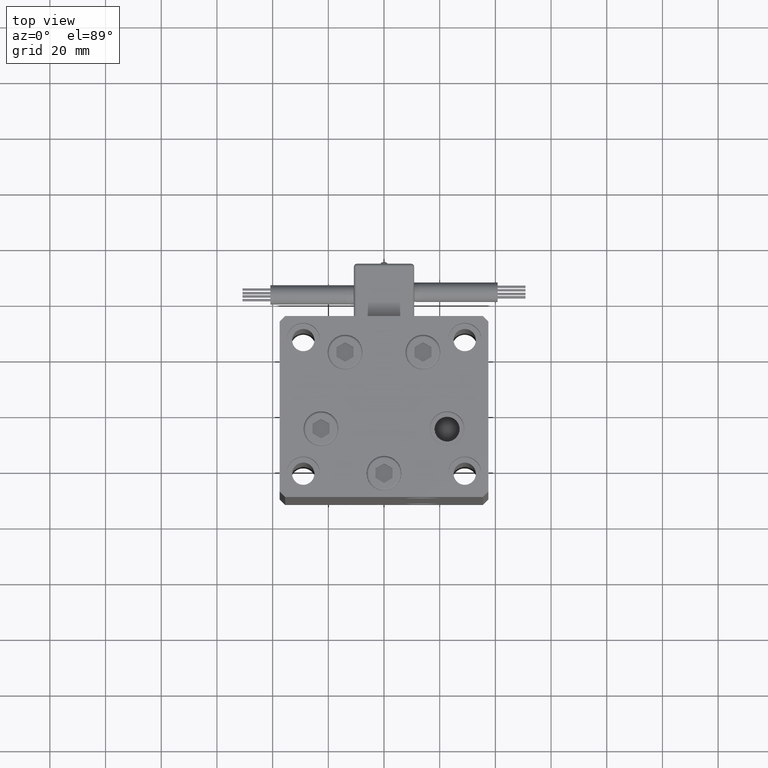
[diagram: clean part render]
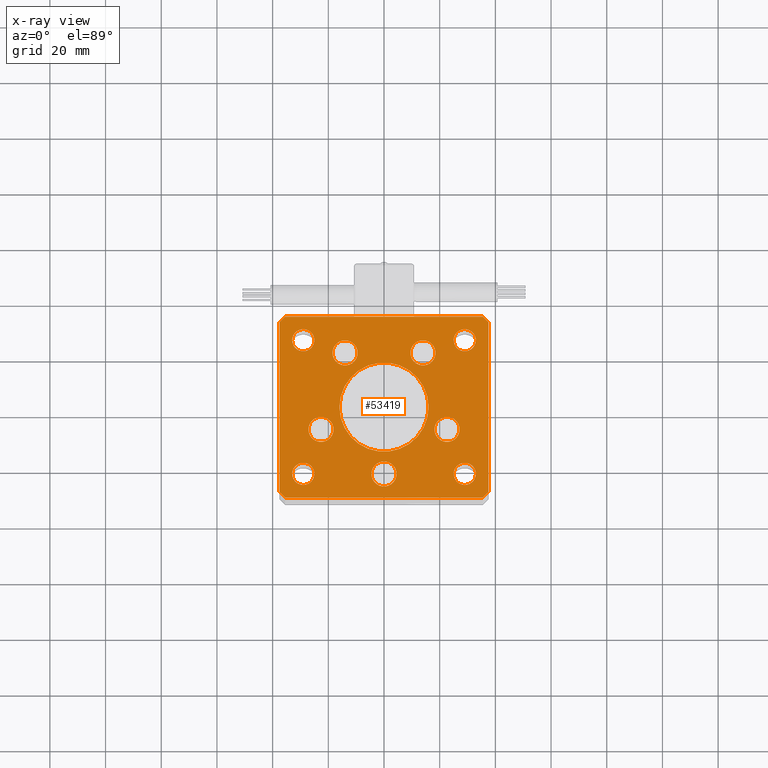
[diagram: x-ray — body ghosted, one internal face saturated and labeled with its STEP entity id]
A machine part, top view, then the same camera in x-ray: the body is ghosted and one INTERNAL B-rep face — a face not visible from any outside direction — is saturated and labeled: STEP entity #53419.
In plain terms, the highlighted planar face has unit normal (0, 0, 1).
Its self-contained STEP definition (entity closure, byte-faithful):
#75 = CARTESIAN_POINT ( 'NONE',  ( 13.99106857963322348, 19.50000000000000000, -15.00000000000000000 ) ) ;
#300 = CARTESIAN_POINT ( 'NONE',  ( -33.00000000000000711, 24.00000000000000711, -15.00000000000000000 ) ) ;
#375 = VERTEX_POINT ( 'NONE', #9102 ) ;
#376 = EDGE_LOOP ( 'NONE', ( #28536, #11638 ) ) ;
#503 = CARTESIAN_POINT ( 'NONE',  ( -4.499999999999999112, -24.00000000000000000, -15.00000000000000000 ) ) ;
#760 = DIRECTION ( 'NONE',  ( 1.000000000000000000, 0.000000000000000000, 0.000000000000000000 ) ) ;
#765 = ORIENTED_EDGE ( 'NONE', *, *, #16383, .F. ) ;
#1034 = EDGE_CURVE ( 'NONE', #19687, #28194, #25902, .T. ) ;
#1124 = ORIENTED_EDGE ( 'NONE', *, *, #20291, .F. ) ;
#1342 = CARTESIAN_POINT ( 'NONE',  ( 37.50000000000001421, -30.50000000000000711, -15.00000000000000000 ) ) ;
#1927 = CIRCLE ( 'NONE', #37577, 4.500000000000000888 ) ;
#2060 = DIRECTION ( 'NONE',  ( 1.000000000000000000, 0.000000000000000000, 0.000000000000000000 ) ) ;
#2107 = EDGE_CURVE ( 'NONE', #29996, #28820, #8516, .T. ) ;
#2145 = ORIENTED_EDGE ( 'NONE', *, *, #23995, .T. ) ;
#2460 = AXIS2_PLACEMENT_3D ( 'NONE', #21470, #42679, #760 ) ;
#2506 = DIRECTION ( 'NONE',  ( -0.7071067811865482389, 0.7071067811865469066, 0.000000000000000000 ) ) ;
#2545 = DIRECTION ( 'NONE',  ( 4.550094363217855288E-16, -1.000000000000000000, 0.000000000000000000 ) ) ;
#2684 = AXIS2_PLACEMENT_3D ( 'NONE', #40672, #3380, #15114 ) ;
#2729 = FACE_BOUND ( 'NONE', #51934, .T. ) ;
#2776 = LINE ( 'NONE', #47221, #33296 ) ;
#2948 = ORIENTED_EDGE ( 'NONE', *, *, #27107, .F. ) ;
#3380 = DIRECTION ( 'NONE',  ( 0.000000000000000000, -0.000000000000000000, -1.000000000000000000 ) ) ;
#3543 = VERTEX_POINT ( 'NONE', #5046 ) ;
#3970 = ORIENTED_EDGE ( 'NONE', *, *, #35708, .F. ) ;
#4070 = EDGE_LOOP ( 'NONE', ( #21224, #16861 ) ) ;
#4469 = AXIS2_PLACEMENT_3D ( 'NONE', #16233, #28760, #24673 ) ;
#4658 = CIRCLE ( 'NONE', #22035, 4.000000000000003553 ) ;
#4809 = VECTOR ( 'NONE', #21756, 1000.000000000000114 ) ;
#4810 = CIRCLE ( 'NONE', #27437, 4.500000000000005329 ) ;
#5001 = ORIENTED_EDGE ( 'NONE', *, *, #15268, .F. ) ;
#5046 = CARTESIAN_POINT ( 'NONE',  ( 37.50000000000001421, -30.50000000000000711, -15.00000000000000000 ) ) ;
#5122 = CARTESIAN_POINT ( 'NONE',  ( -35.49999999999998579, -32.50000000000001421, -15.00000000000000000 ) ) ;
#5373 = DIRECTION ( 'NONE',  ( 1.000000000000000000, 0.000000000000000000, 0.000000000000000000 ) ) ;
#5580 = AXIS2_PLACEMENT_3D ( 'NONE', #10704, #27322, #51547 ) ;
#5753 = CARTESIAN_POINT ( 'NONE',  ( 37.49999999999992184, 30.50000000000001066, -15.00000000000000000 ) ) ;
#5919 = VERTEX_POINT ( 'NONE', #9964 ) ;
#6263 = VERTEX_POINT ( 'NONE', #23725 ) ;
#6343 = CARTESIAN_POINT ( 'NONE',  ( -37.50000000000001421, 30.49999999999998579, -15.00000000000000000 ) ) ;
#6363 = CARTESIAN_POINT ( 'NONE',  ( 2.939152317953647500E-15, -24.00000000000000000, -15.00000000000000000 ) ) ;
#6401 = DIRECTION ( 'NONE',  ( 1.000000000000000000, 0.000000000000000000, 0.000000000000000000 ) ) ;
#6554 = VERTEX_POINT ( 'NONE', #12209 ) ;
#6609 = ORIENTED_EDGE ( 'NONE', *, *, #2107, .T. ) ;
#6672 = DIRECTION ( 'NONE',  ( 0.000000000000000000, -0.000000000000000000, -1.000000000000000000 ) ) ;
#6735 = CARTESIAN_POINT ( 'NONE',  ( -16.00000000000000000, 1.959434878635764737E-15, -15.00000000000000000 ) ) ;
#6871 = EDGE_CURVE ( 'NONE', #28194, #19687, #22629, .T. ) ;
#7072 = CARTESIAN_POINT ( 'NONE',  ( 0.000000000000000000, 0.000000000000000000, -15.00000000000000000 ) ) ;
#7743 = CIRCLE ( 'NONE', #46033, 4.500000000000001776 ) ;
#8018 = VERTEX_POINT ( 'NONE', #18647 ) ;
#8145 = EDGE_CURVE ( 'NONE', #8018, #43575, #37475, .T. ) ;
#8248 = EDGE_CURVE ( 'NONE', #52831, #5919, #20971, .T. ) ;
#8405 = CIRCLE ( 'NONE', #13638, 4.000000000000003553 ) ;
#8516 = CIRCLE ( 'NONE', #2460, 4.000000000000000000 ) ;
#8719 = EDGE_CURVE ( 'NONE', #43697, #37021, #19262, .T. ) ;
#9102 = CARTESIAN_POINT ( 'NONE',  ( 25.00000000000000711, -23.99999999999999289, -15.00000000000000000 ) ) ;
#9519 = CARTESIAN_POINT ( 'NONE',  ( 35.49999999999992184, 32.50000000000000711, -15.00000000000000000 ) ) ;
#9859 = CARTESIAN_POINT ( 'NONE',  ( 37.49999999999992184, 30.50000000000001066, -15.00000000000000000 ) ) ;
#9964 = CARTESIAN_POINT ( 'NONE',  ( 27.12741699796952233, -8.000000000000000000, -15.00000000000000000 ) ) ;
#10182 = CARTESIAN_POINT ( 'NONE',  ( -29.00000000000001066, 24.00000000000000711, -15.00000000000000000 ) ) ;
#10646 = CARTESIAN_POINT ( 'NONE',  ( -33.00000000000000711, -23.99999999999999289, -15.00000000000000000 ) ) ;
#10691 = VERTEX_POINT ( 'NONE', #34171 ) ;
#10704 = CARTESIAN_POINT ( 'NONE',  ( 13.99106857963322348, 19.50000000000000000, -15.00000000000000000 ) ) ;
#10895 = FACE_BOUND ( 'NONE', #13182, .T. ) ;
#11026 = EDGE_CURVE ( 'NONE', #5919, #52831, #1927, .T. ) ;
#11068 = CIRCLE ( 'NONE', #18018, 4.000000000000000000 ) ;
#11470 = DIRECTION ( 'NONE',  ( -1.000000000000000000, 0.000000000000000000, 0.000000000000000000 ) ) ;
#11499 = CARTESIAN_POINT ( 'NONE',  ( 4.500000000000003553, -24.00000000000000000, -15.00000000000000000 ) ) ;
#11635 = DIRECTION ( 'NONE',  ( 0.000000000000000000, -0.000000000000000000, -1.000000000000000000 ) ) ;
#11638 = ORIENTED_EDGE ( 'NONE', *, *, #50146, .F. ) ;
#11751 = DIRECTION ( 'NONE',  ( -1.000000000000000000, 0.000000000000000000, 0.000000000000000000 ) ) ;
#12209 = CARTESIAN_POINT ( 'NONE',  ( 9.491068579633218150, 19.50000000000000000, -15.00000000000000000 ) ) ;
#12391 = VERTEX_POINT ( 'NONE', #45597 ) ;
#12687 = DIRECTION ( 'NONE',  ( -1.000000000000000000, 0.000000000000000000, 0.000000000000000000 ) ) ;
#12771 = CARTESIAN_POINT ( 'NONE',  ( 29.00000000000001066, -23.99999999999999289, -15.00000000000000000 ) ) ;
#12852 = VECTOR ( 'NONE', #34554, 1000.000000000000000 ) ;
#12890 = DIRECTION ( 'NONE',  ( 0.000000000000000000, -0.000000000000000000, -1.000000000000000000 ) ) ;
#13182 = EDGE_LOOP ( 'NONE', ( #37884, #765 ) ) ;
#13347 = CARTESIAN_POINT ( 'NONE',  ( -29.00000000000001066, -23.99999999999999289, -15.00000000000000000 ) ) ;
#13638 = AXIS2_PLACEMENT_3D ( 'NONE', #31736, #22769, #2060 ) ;
#13708 = VERTEX_POINT ( 'NONE', #23538 ) ;
#13785 = AXIS2_PLACEMENT_3D ( 'NONE', #15140, #6672, #6401 ) ;
#14038 = EDGE_CURVE ( 'NONE', #375, #39705, #4658, .T. ) ;
#14175 = FACE_BOUND ( 'NONE', #32340, .T. ) ;
#14516 = AXIS2_PLACEMENT_3D ( 'NONE', #31270, #47880, #24475 ) ;
#14752 = VECTOR ( 'NONE', #26142, 1000.000000000000000 ) ;
#14992 = FACE_BOUND ( 'NONE', #23381, .T. ) ;
#15114 = DIRECTION ( 'NONE',  ( 1.000000000000000000, 0.000000000000000000, 0.000000000000000000 ) ) ;
#15140 = CARTESIAN_POINT ( 'NONE',  ( -13.99106857963322703, 19.49999999999999645, -15.00000000000000000 ) ) ;
#15222 = DIRECTION ( 'NONE',  ( 0.000000000000000000, -0.000000000000000000, -1.000000000000000000 ) ) ;
#15268 = EDGE_CURVE ( 'NONE', #51465, #6263, #40030, .T. ) ;
#15466 = AXIS2_PLACEMENT_3D ( 'NONE', #13347, #26136, #42731 ) ;
#15582 = CARTESIAN_POINT ( 'NONE',  ( -35.50000000000002842, 32.49999999999999289, -15.00000000000000000 ) ) ;
#15803 = EDGE_CURVE ( 'NONE', #6263, #44574, #36287, .T. ) ;
#16233 = CARTESIAN_POINT ( 'NONE',  ( 29.00000000000001066, 24.00000000000000711, -15.00000000000000000 ) ) ;
#16383 = EDGE_CURVE ( 'NONE', #20432, #19707, #36950, .T. ) ;
#16720 = CARTESIAN_POINT ( 'NONE',  ( -25.00000000000001066, 24.00000000000000711, -15.00000000000000000 ) ) ;
#16861 = ORIENTED_EDGE ( 'NONE', *, *, #37058, .F. ) ;
#17237 = ORIENTED_EDGE ( 'NONE', *, *, #31962, .F. ) ;
#17448 = VECTOR ( 'NONE', #2506, 999.9999999999998863 ) ;
#17673 = ORIENTED_EDGE ( 'NONE', *, *, #29159, .F. ) ;
#18018 = AXIS2_PLACEMENT_3D ( 'NONE', #10182, #26807, #47749 ) ;
#18191 = EDGE_CURVE ( 'NONE', #13708, #6554, #30798, .T. ) ;
#18537 = FACE_OUTER_BOUND ( 'NONE', #18785, .T. ) ;
#18647 = CARTESIAN_POINT ( 'NONE',  ( -18.12741699796952233, -8.000000000000005329, -15.00000000000000000 ) ) ;
#18785 = EDGE_LOOP ( 'NONE', ( #1124, #48960, #5001, #31785, #33938, #31579, #3970, #17237 ) ) ;
#18805 = FACE_BOUND ( 'NONE', #43494, .T. ) ;
#19094 = DIRECTION ( 'NONE',  ( -0.7071067811865426878, -0.7071067811865524577, 0.000000000000000000 ) ) ;
#19262 = CIRCLE ( 'NONE', #4469, 4.000000000000003553 ) ;
#19347 = FACE_BOUND ( 'NONE', #28871, .T. ) ;
#19400 = DIRECTION ( 'NONE',  ( 1.000000000000000000, 9.773090005503140331E-17, 0.000000000000000000 ) ) ;
#19650 = CARTESIAN_POINT ( 'NONE',  ( 29.00000000000001066, -23.99999999999999289, -15.00000000000000000 ) ) ;
#19687 = VERTEX_POINT ( 'NONE', #10646 ) ;
#19707 = VERTEX_POINT ( 'NONE', #49281 ) ;
#19937 = CIRCLE ( 'NONE', #32083, 4.000000000000003553 ) ;
#20006 = DIRECTION ( 'NONE',  ( 0.000000000000000000, -0.000000000000000000, -1.000000000000000000 ) ) ;
#20291 = EDGE_CURVE ( 'NONE', #44574, #47645, #34519, .T. ) ;
#20432 = VERTEX_POINT ( 'NONE', #6735 ) ;
#20592 = DIRECTION ( 'NONE',  ( -0.000000000000000000, -0.000000000000000000, -1.000000000000000000 ) ) ;
#20654 = CARTESIAN_POINT ( 'NONE',  ( 25.00000000000000711, 24.00000000000000711, -15.00000000000000000 ) ) ;
#20971 = CIRCLE ( 'NONE', #27921, 4.500000000000000888 ) ;
#21224 = ORIENTED_EDGE ( 'NONE', *, *, #18191, .F. ) ;
#21467 = DIRECTION ( 'NONE',  ( 0.000000000000000000, -0.000000000000000000, -1.000000000000000000 ) ) ;
#21470 = CARTESIAN_POINT ( 'NONE',  ( -29.00000000000001066, 24.00000000000000711, -15.00000000000000000 ) ) ;
#21720 = AXIS2_PLACEMENT_3D ( 'NONE', #42677, #21467, #5373 ) ;
#21756 = DIRECTION ( 'NONE',  ( 0.7071067811865474617, -0.7071067811865474617, 0.000000000000000000 ) ) ;
#22035 = AXIS2_PLACEMENT_3D ( 'NONE', #19650, #36235, #11470 ) ;
#22629 = CIRCLE ( 'NONE', #53065, 3.999999999999996447 ) ;
#22769 = DIRECTION ( 'NONE',  ( 0.000000000000000000, 0.000000000000000000, 1.000000000000000000 ) ) ;
#23363 = CIRCLE ( 'NONE', #13785, 4.499999999999999112 ) ;
#23367 = CARTESIAN_POINT ( 'NONE',  ( 35.49999999999992184, 32.50000000000000711, -15.00000000000000000 ) ) ;
#23381 = EDGE_LOOP ( 'NONE', ( #2145, #45048 ) ) ;
#23538 = CARTESIAN_POINT ( 'NONE',  ( 18.49106857963322881, 19.50000000000000000, -15.00000000000000000 ) ) ;
#23725 = CARTESIAN_POINT ( 'NONE',  ( -37.50000000000001421, 30.49999999999998579, -15.00000000000000000 ) ) ;
#23995 = EDGE_CURVE ( 'NONE', #37021, #43697, #8405, .T. ) ;
#24098 = CARTESIAN_POINT ( 'NONE',  ( 22.62741699796951877, -8.000000000000000000, -15.00000000000000000 ) ) ;
#24172 = DIRECTION ( 'NONE',  ( 1.000000000000000000, 0.000000000000000000, 0.000000000000000000 ) ) ;
#24343 = CARTESIAN_POINT ( 'NONE',  ( 33.00000000000001421, 24.00000000000000711, -15.00000000000000000 ) ) ;
#24359 = DIRECTION ( 'NONE',  ( 0.000000000000000000, -0.000000000000000000, -1.000000000000000000 ) ) ;
#24475 = DIRECTION ( 'NONE',  ( 1.000000000000000000, 0.000000000000000000, 0.000000000000000000 ) ) ;
#24673 = DIRECTION ( 'NONE',  ( 1.000000000000000000, 0.000000000000000000, 0.000000000000000000 ) ) ;
#25521 = ORIENTED_EDGE ( 'NONE', *, *, #6871, .F. ) ;
#25902 = CIRCLE ( 'NONE', #15466, 3.999999999999996447 ) ;
#26136 = DIRECTION ( 'NONE',  ( -0.000000000000000000, -0.000000000000000000, -1.000000000000000000 ) ) ;
#26142 = DIRECTION ( 'NONE',  ( -1.000000000000000000, -1.954618001100629052E-16, 0.000000000000000000 ) ) ;
#26364 = CARTESIAN_POINT ( 'NONE',  ( 18.12741699796951877, -8.000000000000000000, -15.00000000000000000 ) ) ;
#26807 = DIRECTION ( 'NONE',  ( 0.000000000000000000, 0.000000000000000000, 1.000000000000000000 ) ) ;
#26976 = DIRECTION ( 'NONE',  ( -0.000000000000000000, 0.000000000000000000, 1.000000000000000000 ) ) ;
#27107 = EDGE_CURVE ( 'NONE', #51338, #10691, #23363, .T. ) ;
#27241 = FACE_BOUND ( 'NONE', #376, .T. ) ;
#27322 = DIRECTION ( 'NONE',  ( 0.000000000000000000, -0.000000000000000000, -1.000000000000000000 ) ) ;
#27437 = AXIS2_PLACEMENT_3D ( 'NONE', #75, #53720, #28150 ) ;
#27816 = CIRCLE ( 'NONE', #21720, 4.500000000000001776 ) ;
#27921 = AXIS2_PLACEMENT_3D ( 'NONE', #42011, #53736, #49906 ) ;
#28150 = DIRECTION ( 'NONE',  ( 1.000000000000000000, 0.000000000000000000, 0.000000000000000000 ) ) ;
#28194 = VERTEX_POINT ( 'NONE', #31467 ) ;
#28536 = ORIENTED_EDGE ( 'NONE', *, *, #49501, .F. ) ;
#28697 = DIRECTION ( 'NONE',  ( 1.000000000000000000, 0.000000000000000000, 0.000000000000000000 ) ) ;
#28760 = DIRECTION ( 'NONE',  ( 0.000000000000000000, 0.000000000000000000, 1.000000000000000000 ) ) ;
#28763 = CARTESIAN_POINT ( 'NONE',  ( -29.00000000000001066, -23.99999999999999289, -15.00000000000000000 ) ) ;
#28820 = VERTEX_POINT ( 'NONE', #16720 ) ;
#28871 = EDGE_LOOP ( 'NONE', ( #25521, #49730 ) ) ;
#28923 = EDGE_LOOP ( 'NONE', ( #17673, #39121 ) ) ;
#29159 = EDGE_CURVE ( 'NONE', #39705, #375, #19937, .T. ) ;
#29380 = AXIS2_PLACEMENT_3D ( 'NONE', #36048, #24359, #41203 ) ;
#29996 = VERTEX_POINT ( 'NONE', #300 ) ;
#30707 = VERTEX_POINT ( 'NONE', #11499 ) ;
#30798 = CIRCLE ( 'NONE', #5580, 4.500000000000005329 ) ;
#30904 = ORIENTED_EDGE ( 'NONE', *, *, #11026, .F. ) ;
#31270 = CARTESIAN_POINT ( 'NONE',  ( 0.000000000000000000, 0.000000000000000000, -15.00000000000000000 ) ) ;
#31313 = FACE_BOUND ( 'NONE', #4070, .T. ) ;
#31366 = LINE ( 'NONE', #9859, #17448 ) ;
#31467 = CARTESIAN_POINT ( 'NONE',  ( -25.00000000000001066, -23.99999999999999289, -15.00000000000000000 ) ) ;
#31579 = ORIENTED_EDGE ( 'NONE', *, *, #45400, .F. ) ;
#31736 = CARTESIAN_POINT ( 'NONE',  ( 29.00000000000001066, 24.00000000000000711, -15.00000000000000000 ) ) ;
#31785 = ORIENTED_EDGE ( 'NONE', *, *, #49792, .F. ) ;
#31962 = EDGE_CURVE ( 'NONE', #47645, #12391, #2776, .T. ) ;
#32083 = AXIS2_PLACEMENT_3D ( 'NONE', #12771, #50583, #11751 ) ;
#32340 = EDGE_LOOP ( 'NONE', ( #30904, #41965 ) ) ;
#32655 = EDGE_CURVE ( 'NONE', #43575, #8018, #37689, .T. ) ;
#33296 = VECTOR ( 'NONE', #19400, 1000.000000000000000 ) ;
#33938 = ORIENTED_EDGE ( 'NONE', *, *, #51447, .F. ) ;
#34171 = CARTESIAN_POINT ( 'NONE',  ( -18.49106857963322526, 19.49999999999999645, -15.00000000000000000 ) ) ;
#34262 = VECTOR ( 'NONE', #2545, 1000.000000000000000 ) ;
#34519 = LINE ( 'NONE', #47035, #4809 ) ;
#34554 = DIRECTION ( 'NONE',  ( -1.478780668045802821E-15, 1.000000000000000000, 0.000000000000000000 ) ) ;
#35162 = LINE ( 'NONE', #47691, #41298 ) ;
#35185 = AXIS2_PLACEMENT_3D ( 'NONE', #52513, #15222, #48141 ) ;
#35664 = FACE_BOUND ( 'NONE', #38610, .T. ) ;
#35708 = EDGE_CURVE ( 'NONE', #12391, #3543, #35162, .T. ) ;
#35710 = DIRECTION ( 'NONE',  ( 0.7071067811865487940, 0.7071067811865463515, 0.000000000000000000 ) ) ;
#36048 = CARTESIAN_POINT ( 'NONE',  ( -13.99106857963322703, 19.49999999999999645, -15.00000000000000000 ) ) ;
#36235 = DIRECTION ( 'NONE',  ( -0.000000000000000000, -0.000000000000000000, -1.000000000000000000 ) ) ;
#36287 = LINE ( 'NONE', #6343, #34262 ) ;
#36595 = DIRECTION ( 'NONE',  ( 1.000000000000000000, 0.000000000000000000, 0.000000000000000000 ) ) ;
#36950 = CIRCLE ( 'NONE', #35185, 16.00000000000000000 ) ;
#37021 = VERTEX_POINT ( 'NONE', #24343 ) ;
#37058 = EDGE_CURVE ( 'NONE', #6554, #13708, #4810, .T. ) ;
#37475 = CIRCLE ( 'NONE', #2684, 4.499999999999997335 ) ;
#37577 = AXIS2_PLACEMENT_3D ( 'NONE', #24098, #20006, #36595 ) ;
#37689 = CIRCLE ( 'NONE', #47226, 4.499999999999997335 ) ;
#37777 = VECTOR ( 'NONE', #19094, 1000.000000000000000 ) ;
#37884 = ORIENTED_EDGE ( 'NONE', *, *, #43583, .F. ) ;
#38610 = EDGE_LOOP ( 'NONE', ( #51680, #49331 ) ) ;
#39121 = ORIENTED_EDGE ( 'NONE', *, *, #14038, .F. ) ;
#39475 = DIRECTION ( 'NONE',  ( 1.000000000000000000, 0.000000000000000000, 0.000000000000000000 ) ) ;
#39483 = CARTESIAN_POINT ( 'NONE',  ( -35.50000000000002842, 32.49999999999999289, -15.00000000000000000 ) ) ;
#39705 = VERTEX_POINT ( 'NONE', #53446 ) ;
#39743 = PLANE ( 'NONE',  #51275 ) ;
#39774 = VERTEX_POINT ( 'NONE', #5753 ) ;
#40030 = LINE ( 'NONE', #39483, #37777 ) ;
#40245 = CARTESIAN_POINT ( 'NONE',  ( -27.12741699796951877, -8.000000000000005329, -15.00000000000000000 ) ) ;
#40672 = CARTESIAN_POINT ( 'NONE',  ( -22.62741699796951877, -8.000000000000005329, -15.00000000000000000 ) ) ;
#41203 = DIRECTION ( 'NONE',  ( 1.000000000000000000, 0.000000000000000000, 0.000000000000000000 ) ) ;
#41298 = VECTOR ( 'NONE', #35710, 1000.000000000000000 ) ;
#41477 = CARTESIAN_POINT ( 'NONE',  ( -9.491068579633228808, 19.49999999999999645, -15.00000000000000000 ) ) ;
#41965 = ORIENTED_EDGE ( 'NONE', *, *, #8248, .F. ) ;
#42011 = CARTESIAN_POINT ( 'NONE',  ( 22.62741699796951877, -8.000000000000000000, -15.00000000000000000 ) ) ;
#42677 = CARTESIAN_POINT ( 'NONE',  ( 2.939152317953647500E-15, -24.00000000000000000, -15.00000000000000000 ) ) ;
#42679 = DIRECTION ( 'NONE',  ( 0.000000000000000000, 0.000000000000000000, 1.000000000000000000 ) ) ;
#42731 = DIRECTION ( 'NONE',  ( -1.000000000000000000, 0.000000000000000000, 0.000000000000000000 ) ) ;
#43494 = EDGE_LOOP ( 'NONE', ( #2948, #51066 ) ) ;
#43575 = VERTEX_POINT ( 'NONE', #40245 ) ;
#43583 = EDGE_CURVE ( 'NONE', #19707, #20432, #51052, .T. ) ;
#43697 = VERTEX_POINT ( 'NONE', #20654 ) ;
#44107 = FACE_BOUND ( 'NONE', #28923, .T. ) ;
#44367 = EDGE_CURVE ( 'NONE', #28820, #29996, #11068, .T. ) ;
#44574 = VERTEX_POINT ( 'NONE', #44879 ) ;
#44879 = CARTESIAN_POINT ( 'NONE',  ( -37.49999999999998579, -30.50000000000001421, -15.00000000000000000 ) ) ;
#44968 = CIRCLE ( 'NONE', #29380, 4.499999999999999112 ) ;
#44998 = EDGE_CURVE ( 'NONE', #10691, #51338, #44968, .T. ) ;
#45048 = ORIENTED_EDGE ( 'NONE', *, *, #8719, .T. ) ;
#45400 = EDGE_CURVE ( 'NONE', #3543, #39774, #49352, .T. ) ;
#45597 = CARTESIAN_POINT ( 'NONE',  ( 35.50000000000000711, -32.50000000000000711, -15.00000000000000000 ) ) ;
#46033 = AXIS2_PLACEMENT_3D ( 'NONE', #6363, #12890, #28697 ) ;
#47035 = CARTESIAN_POINT ( 'NONE',  ( -37.49999999999998579, -30.50000000000001421, -15.00000000000000000 ) ) ;
#47221 = CARTESIAN_POINT ( 'NONE',  ( -35.49999999999998579, -32.50000000000001421, -15.00000000000000000 ) ) ;
#47226 = AXIS2_PLACEMENT_3D ( 'NONE', #48904, #11635, #24172 ) ;
#47343 = LINE ( 'NONE', #9519, #14752 ) ;
#47581 = VERTEX_POINT ( 'NONE', #503 ) ;
#47645 = VERTEX_POINT ( 'NONE', #5122 ) ;
#47691 = CARTESIAN_POINT ( 'NONE',  ( 35.50000000000000711, -32.50000000000000711, -15.00000000000000000 ) ) ;
#47749 = DIRECTION ( 'NONE',  ( 1.000000000000000000, 0.000000000000000000, 0.000000000000000000 ) ) ;
#47880 = DIRECTION ( 'NONE',  ( 0.000000000000000000, -0.000000000000000000, -1.000000000000000000 ) ) ;
#48141 = DIRECTION ( 'NONE',  ( 1.000000000000000000, 0.000000000000000000, 0.000000000000000000 ) ) ;
#48904 = CARTESIAN_POINT ( 'NONE',  ( -22.62741699796951877, -8.000000000000005329, -15.00000000000000000 ) ) ;
#48960 = ORIENTED_EDGE ( 'NONE', *, *, #15803, .F. ) ;
#49281 = CARTESIAN_POINT ( 'NONE',  ( 16.00000000000000000, 0.000000000000000000, -15.00000000000000000 ) ) ;
#49331 = ORIENTED_EDGE ( 'NONE', *, *, #32655, .F. ) ;
#49352 = LINE ( 'NONE', #1342, #12852 ) ;
#49501 = EDGE_CURVE ( 'NONE', #30707, #47581, #7743, .T. ) ;
#49730 = ORIENTED_EDGE ( 'NONE', *, *, #1034, .F. ) ;
#49792 = EDGE_CURVE ( 'NONE', #52981, #51465, #47343, .T. ) ;
#49906 = DIRECTION ( 'NONE',  ( 1.000000000000000000, 0.000000000000000000, 0.000000000000000000 ) ) ;
#50146 = EDGE_CURVE ( 'NONE', #47581, #30707, #27816, .T. ) ;
#50583 = DIRECTION ( 'NONE',  ( -0.000000000000000000, -0.000000000000000000, -1.000000000000000000 ) ) ;
#51052 = CIRCLE ( 'NONE', #14516, 16.00000000000000000 ) ;
#51066 = ORIENTED_EDGE ( 'NONE', *, *, #44998, .F. ) ;
#51275 = AXIS2_PLACEMENT_3D ( 'NONE', #7072, #26976, #39475 ) ;
#51338 = VERTEX_POINT ( 'NONE', #41477 ) ;
#51447 = EDGE_CURVE ( 'NONE', #39774, #52981, #31366, .T. ) ;
#51465 = VERTEX_POINT ( 'NONE', #15582 ) ;
#51547 = DIRECTION ( 'NONE',  ( 1.000000000000000000, 0.000000000000000000, 0.000000000000000000 ) ) ;
#51680 = ORIENTED_EDGE ( 'NONE', *, *, #8145, .F. ) ;
#51934 = EDGE_LOOP ( 'NONE', ( #52500, #6609 ) ) ;
#52500 = ORIENTED_EDGE ( 'NONE', *, *, #44367, .T. ) ;
#52513 = CARTESIAN_POINT ( 'NONE',  ( 0.000000000000000000, 0.000000000000000000, -15.00000000000000000 ) ) ;
#52831 = VERTEX_POINT ( 'NONE', #26364 ) ;
#52981 = VERTEX_POINT ( 'NONE', #23367 ) ;
#53065 = AXIS2_PLACEMENT_3D ( 'NONE', #28763, #20592, #12687 ) ;
#53419 = ADVANCED_FACE ( 'NONE', ( #10895, #35664, #27241, #14175, #31313, #18805, #14992, #2729, #18537, #44107, #19347 ), #39743, .F. ) ;
#53446 = CARTESIAN_POINT ( 'NONE',  ( 33.00000000000001421, -23.99999999999999289, -15.00000000000000000 ) ) ;
#53720 = DIRECTION ( 'NONE',  ( 0.000000000000000000, -0.000000000000000000, -1.000000000000000000 ) ) ;
#53736 = DIRECTION ( 'NONE',  ( 0.000000000000000000, -0.000000000000000000, -1.000000000000000000 ) ) ;